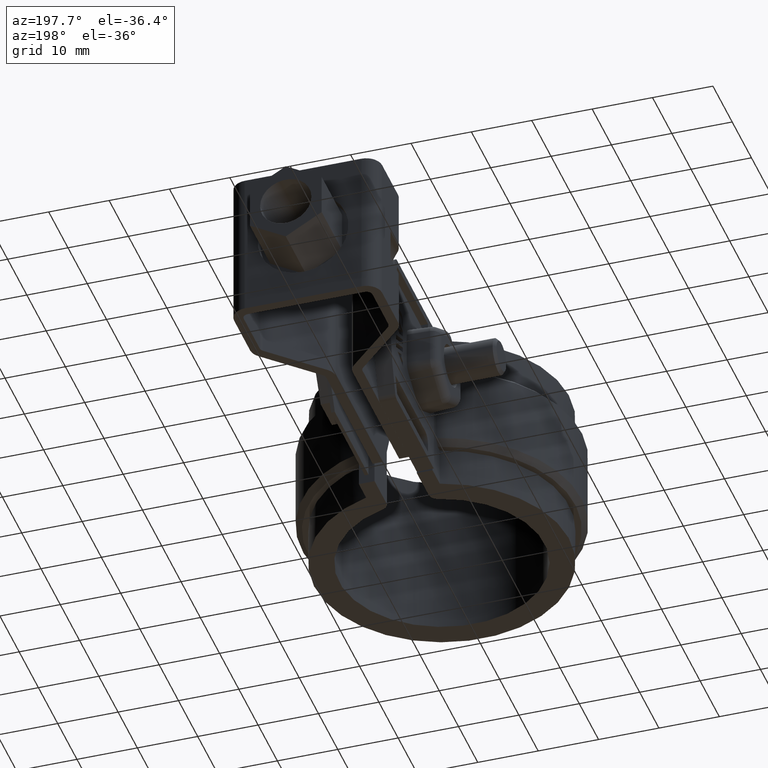
[diagram: clean part render]
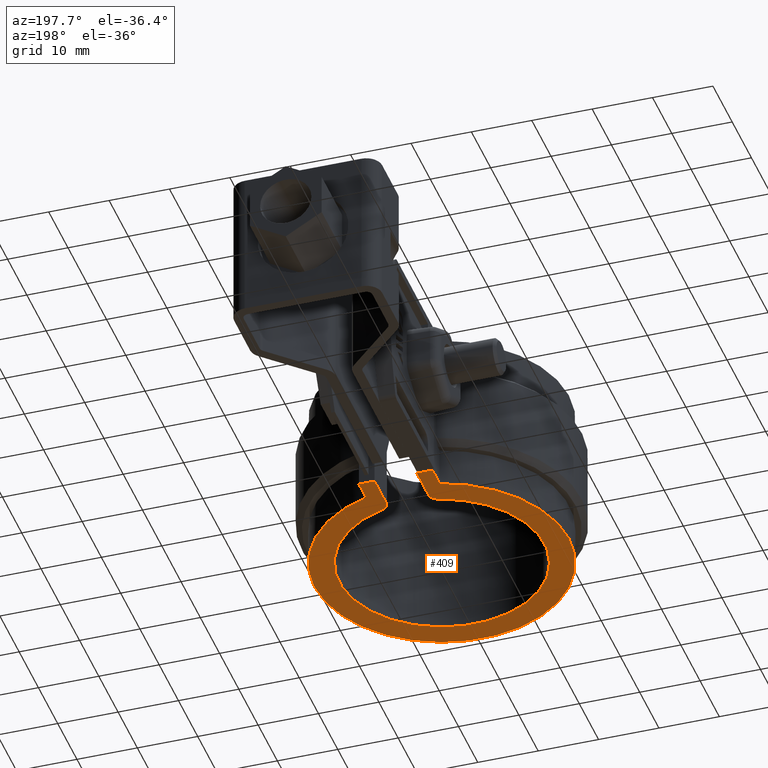
[diagram: same view with one face highlighted and labeled with its STEP entity id]
A machine part, auxiliary view. The second image highlights one B-rep face of the part: STEP entity #409.
In plain terms, the highlighted planar face has unit normal (0, 0, 1).
Its self-contained STEP definition (entity closure, byte-faithful):
#409 = ADVANCED_FACE( '', ( #793 ), #794, .F. );
#793 = FACE_OUTER_BOUND( '', #1694, .T. );
#794 = PLANE( '', #1695 );
#1694 = EDGE_LOOP( '', ( #3493, #3494, #3495, #3496, #3497, #3498, #3499, #3500, #3501, #3502 ) );
#1695 = AXIS2_PLACEMENT_3D( '', #3503, #3504, #3505 );
#3493 = ORIENTED_EDGE( '', *, *, #6494, .F. );
#3494 = ORIENTED_EDGE( '', *, *, #6495, .F. );
#3495 = ORIENTED_EDGE( '', *, *, #6496, .F. );
#3496 = ORIENTED_EDGE( '', *, *, #6497, .F. );
#3497 = ORIENTED_EDGE( '', *, *, #6498, .F. );
#3498 = ORIENTED_EDGE( '', *, *, #6499, .F. );
#3499 = ORIENTED_EDGE( '', *, *, #6500, .T. );
#3500 = ORIENTED_EDGE( '', *, *, #6501, .T. );
#3501 = ORIENTED_EDGE( '', *, *, #6502, .T. );
#3502 = ORIENTED_EDGE( '', *, *, #6503, .F. );
#3503 = CARTESIAN_POINT( '', ( -4.33680868994202E-015, 0.000000000000000, -26.5000000000000 ) );
#3504 = DIRECTION( '', ( 0.000000000000000, 0.000000000000000, 1.00000000000000 ) );
#3505 = DIRECTION( '', ( 1.00000000000000, 0.000000000000000, 0.000000000000000 ) );
#6494 = EDGE_CURVE( '', #7509, #7510, #7511, .F. );
#6495 = EDGE_CURVE( '', #7512, #7509, #7513, .F. );
#6496 = EDGE_CURVE( '', #7514, #7512, #7515, .T. );
#6497 = EDGE_CURVE( '', #7516, #7514, #7517, .F. );
#6498 = EDGE_CURVE( '', #7518, #7516, #7519, .F. );
#6499 = EDGE_CURVE( '', #7520, #7518, #7521, .F. );
#6500 = EDGE_CURVE( '', #7520, #7522, #7523, .F. );
#6501 = EDGE_CURVE( '', #7522, #7524, #7525, .T. );
#6502 = EDGE_CURVE( '', #7524, #7526, #7527, .F. );
#6503 = EDGE_CURVE( '', #7510, #7526, #7528, .F. );
#7509 = VERTEX_POINT( '', #9837 );
#7510 = VERTEX_POINT( '', #9838 );
#7511 = LINE( '', #9839, #9840 );
#7512 = VERTEX_POINT( '', #9841 );
#7513 = LINE( '', #9842, #9843 );
#7514 = VERTEX_POINT( '', #9844 );
#7515 = CIRCLE( '', #9845, 21.0950000000000 );
#7516 = VERTEX_POINT( '', #9846 );
#7517 = LINE( '', #9847, #9848 );
#7518 = VERTEX_POINT( '', #9849 );
#7519 = LINE( '', #9850, #9851 );
#7520 = VERTEX_POINT( '', #9852 );
#7521 = LINE( '', #9853, #9854 );
#7522 = VERTEX_POINT( '', #9855 );
#7523 = CIRCLE( '', #9856, 1.50000000000000 );
#7524 = VERTEX_POINT( '', #9857 );
#7525 = CIRCLE( '', #9858, 17.0000000000000 );
#7526 = VERTEX_POINT( '', #9859 );
#7527 = CIRCLE( '', #9860, 1.50000000000000 );
#7528 = LINE( '', #9861, #9862 );
#9837 = CARTESIAN_POINT( '', ( 6.09999999999998, 23.9443584449549, -26.5000000000000 ) );
#9838 = CARTESIAN_POINT( '', ( 3.49999999999999, 23.9443584449549, -26.5000000000000 ) );
#9839 = CARTESIAN_POINT( '', ( 545.239706953718, 23.9443584449549, -26.5000000000000 ) );
#9840 = VECTOR( '', #12671, 1000.00000000000 );
#9841 = CARTESIAN_POINT( '', ( 6.09999999999997, 20.1937867919813, -26.5000000000000 ) );
#9842 = CARTESIAN_POINT( '', ( 6.09999999999997, 20.1937867919813, -26.5000000000000 ) );
#9843 = VECTOR( '', #12672, 1000.00000000000 );
#9844 = CARTESIAN_POINT( '', ( -6.10000000000002, 20.1937867919813, -26.5000000000000 ) );
#9845 = AXIS2_PLACEMENT_3D( '', #12673, #12674, #12675 );
#9846 = CARTESIAN_POINT( '', ( -6.10000000000001, 23.9443584449549, -26.5000000000000 ) );
#9847 = CARTESIAN_POINT( '', ( -6.10000000000002, 24.4800000000000, -26.5000000000000 ) );
#9848 = VECTOR( '', #12676, 1000.00000000000 );
#9849 = CARTESIAN_POINT( '', ( -3.50000000000002, 23.9443584449549, -26.5000000000000 ) );
#9850 = CARTESIAN_POINT( '', ( 545.239706953718, 23.9443584449549, -26.5000000000000 ) );
#9851 = VECTOR( '', #12677, 1000.00000000000 );
#9852 = CARTESIAN_POINT( '', ( -3.50000000000001, 17.8115131305569, -26.5000000000000 ) );
#9853 = CARTESIAN_POINT( '', ( -3.50000000000001, 16.6306952650814, -26.5000000000000 ) );
#9854 = VECTOR( '', #12678, 1000.00000000000 );
#9855 = CARTESIAN_POINT( '', ( -4.59459459459459, 16.3673363902415, -26.5000000000000 ) );
#9856 = AXIS2_PLACEMENT_3D( '', #12679, #12680, #12681 );
#9857 = CARTESIAN_POINT( '', ( 4.59459459459459, 16.3673363902415, -26.5000000000000 ) );
#9858 = AXIS2_PLACEMENT_3D( '', #12682, #12683, #12684 );
#9859 = CARTESIAN_POINT( '', ( 3.50000000000000, 17.8115131305569, -26.5000000000000 ) );
#9860 = AXIS2_PLACEMENT_3D( '', #12685, #12686, #12687 );
#9861 = CARTESIAN_POINT( '', ( 3.50000000000000, 24.4800000000000, -26.5000000000000 ) );
#9862 = VECTOR( '', #12688, 1000.00000000000 );
#12671 = DIRECTION( '', ( 1.00000000000000, 0.000000000000000, 0.000000000000000 ) );
#12672 = DIRECTION( '', ( -6.07153216591882E-017, -1.00000000000000, 0.000000000000000 ) );
#12673 = CARTESIAN_POINT( '', ( -4.33680868994202E-015, 0.000000000000000, -26.5000000000000 ) );
#12674 = DIRECTION( '', ( 0.000000000000000, 0.000000000000000, 1.00000000000000 ) );
#12675 = DIRECTION( '', ( 1.00000000000000, 0.000000000000000, 0.000000000000000 ) );
#12676 = DIRECTION( '', ( 6.07153216591882E-017, 1.00000000000000, 0.000000000000000 ) );
#12677 = DIRECTION( '', ( 1.00000000000000, 0.000000000000000, 0.000000000000000 ) );
#12678 = DIRECTION( '', ( -6.07153216591882E-017, -1.00000000000000, 0.000000000000000 ) );
#12679 = CARTESIAN_POINT( '', ( -5.00000000000000, 17.8115131305569, -26.5000000000000 ) );
#12680 = DIRECTION( '', ( 0.000000000000000, 0.000000000000000, 1.00000000000000 ) );
#12681 = DIRECTION( '', ( 1.00000000000000, 0.000000000000000, 0.000000000000000 ) );
#12682 = CARTESIAN_POINT( '', ( 0.000000000000000, 0.000000000000000, -26.5000000000000 ) );
#12683 = DIRECTION( '', ( 0.000000000000000, 0.000000000000000, 1.00000000000000 ) );
#12684 = DIRECTION( '', ( 1.00000000000000, 0.000000000000000, 0.000000000000000 ) );
#12685 = CARTESIAN_POINT( '', ( 4.99999999999999, 17.8115131305569, -26.5000000000000 ) );
#12686 = DIRECTION( '', ( 0.000000000000000, 0.000000000000000, 1.00000000000000 ) );
#12687 = DIRECTION( '', ( 1.00000000000000, 0.000000000000000, 0.000000000000000 ) );
#12688 = DIRECTION( '', ( 6.07153216591882E-017, 1.00000000000000, 0.000000000000000 ) );